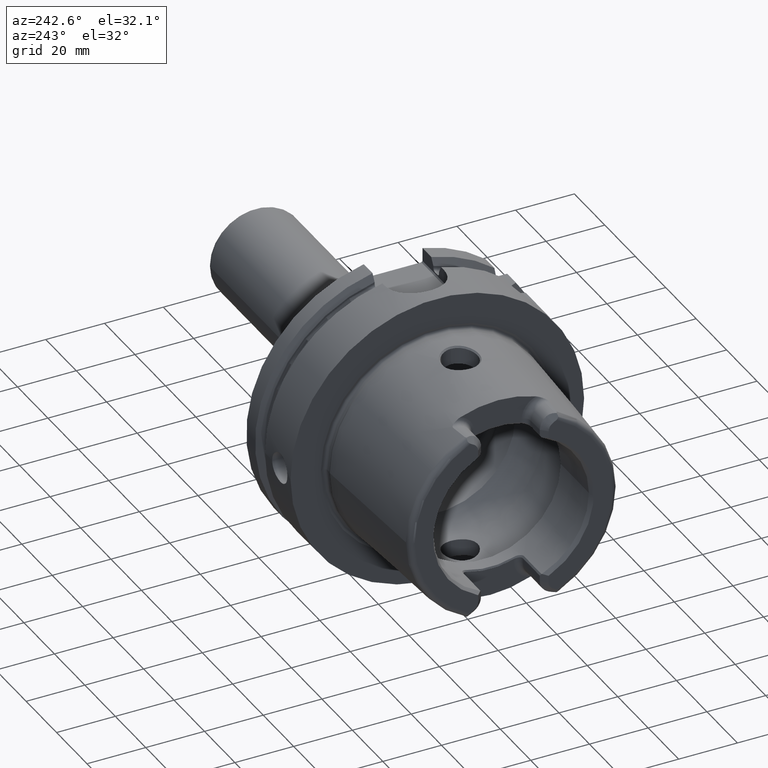
[diagram: clean part render]
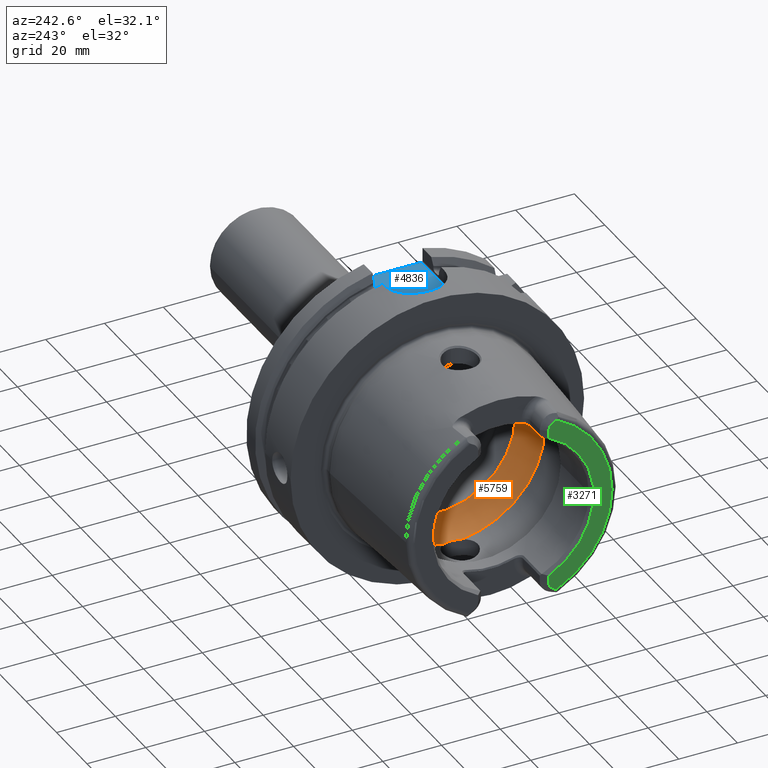
[diagram: same view with three faces highlighted in distinct colors, each labeled with its STEP entity id]
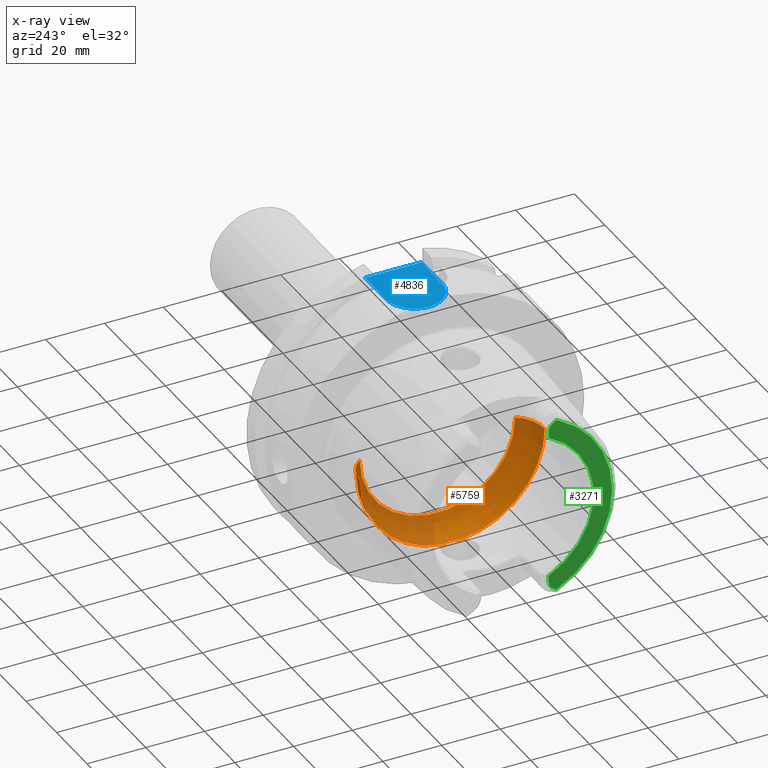
[diagram: x-ray of the same camera — body ghosted, the three highlighted faces saturated]
A machine part, auxiliary view with three faces highlighted in distinct colors.
The next image is the same camera in x-ray (body ghosted, the three faces saturated) — at least one of them is partly hidden behind the body in this view.
Their STEP definitions:

[orange] entity #5759 — the highlighted toroidal blend (fillet) surface has major radius 19.5 mm and minor (blend) radius 12 mm.
#2191=CARTESIAN_POINT('',(-9.846794344809E0,0.E0,0.E0));
#2192=DIRECTION('',(-1.E0,0.E0,0.E0));
#2193=DIRECTION('',(0.E0,-9.756145662299E-2,-9.952295022665E-1));
#2194=AXIS2_PLACEMENT_3D('',#2191,#2192,#2193);
#2204=CARTESIAN_POINT('',(-9.846794344809E0,0.E0,0.E0));
#2205=DIRECTION('',(-1.E0,0.E0,0.E0));
#2206=DIRECTION('',(0.E0,1.E0,0.E0));
#2207=AXIS2_PLACEMENT_3D('',#2204,#2205,#2206);
#2209=CARTESIAN_POINT('',(-9.846794344809E0,3.073185883624E0,
-3.134972932139E1));
#2210=CARTESIAN_POINT('',(-9.738537060689E0,2.891656984993E0,
-3.136752443672E1));
#2211=CARTESIAN_POINT('',(-9.539962893717E0,2.515101251431E0,
-3.139831839188E1));
#2212=CARTESIAN_POINT('',(-9.301049424477E0,1.913783257480E0,
-3.143197673752E1));
#2213=CARTESIAN_POINT('',(-9.127438432729E0,1.286303015996E0,
-3.145454039544E1));
#2214=CARTESIAN_POINT('',(-9.022899506342E0,6.437010581526E-1,
-3.146736051152E1));
#2215=CARTESIAN_POINT('',(-9.E0,2.141354428497E-1,-3.147008518506E1));
#2216=CARTESIAN_POINT('',(-9.E0,0.E0,-3.147008518506E1));
#2218=CARTESIAN_POINT('',(-9.846794344809E0,1.95E1,0.E0));
#2219=DIRECTION('',(0.E0,0.E0,1.E0));
#2220=DIRECTION('',(8.122328620674E-1,5.833333333333E-1,0.E0));
#2221=AXIS2_PLACEMENT_3D('',#2218,#2219,#2220);
#2223=CARTESIAN_POINT('',(-1.E-1,0.E0,0.E0));
#2224=DIRECTION('',(-1.E0,0.E0,0.E0));
#2225=DIRECTION('',(0.E0,1.E0,0.E0));
#2226=AXIS2_PLACEMENT_3D('',#2223,#2224,#2225);
#2228=CARTESIAN_POINT('',(-9.846794344809E0,-1.95E1,0.E0));
#2229=DIRECTION('',(0.E0,0.E0,-1.E0));
#2230=DIRECTION('',(8.122328620674E-1,-5.833333333333E-1,0.E0));
#2231=AXIS2_PLACEMENT_3D('',#2228,#2229,#2230);
#2233=CARTESIAN_POINT('',(-9.E0,0.E0,-3.147008518506E1));
#2234=CARTESIAN_POINT('',(-9.E0,-2.140673862591E-1,-3.147008518506E1));
#2235=CARTESIAN_POINT('',(-9.022884475739E0,-6.435227636510E-1,
-3.146736230982E1));
#2236=CARTESIAN_POINT('',(-9.127385021154E0,-1.286046048393E0,
-3.145454700706E1));
#2237=CARTESIAN_POINT('',(-9.300956096822E0,-1.913519178713E0,
-3.143198945276E1));
#2238=CARTESIAN_POINT('',(-9.539929943663E0,-2.515045104426E0,
-3.139832356097E1));
#2239=CARTESIAN_POINT('',(-9.738527185842E0,-2.891640426569E0,
-3.136752605993E1));
#2240=CARTESIAN_POINT('',(-9.846794344809E0,-3.073185883624E0,
-3.134972932139E1));
#2733=CARTESIAN_POINT('',(-1.E-1,2.65E1,0.E0));
#2734=VERTEX_POINT('',#2733);
#2735=CARTESIAN_POINT('',(-9.846794344809E0,3.15E1,0.E0));
#2736=VERTEX_POINT('',#2735);
#2745=CARTESIAN_POINT('',(-1.E-1,-2.65E1,0.E0));
#2746=VERTEX_POINT('',#2745);
#2747=CARTESIAN_POINT('',(-9.846794344809E0,-3.15E1,0.E0));
#2748=VERTEX_POINT('',#2747);
#2918=VERTEX_POINT('',#2209);
#2919=VERTEX_POINT('',#2216);
#2920=VERTEX_POINT('',#2240);
#5744=CARTESIAN_POINT('',(-9.846794344809E0,0.E0,0.E0));
#5745=DIRECTION('',(1.E0,0.E0,0.E0));
#5746=DIRECTION('',(0.E0,-1.E0,0.E0));
#5747=AXIS2_PLACEMENT_3D('',#5744,#5745,#5746);
#5748=TOROIDAL_SURFACE('',#5747,1.95E1,1.2E1);
#5749=ORIENTED_EDGE('',*,*,#5682,.F.);
#5750=ORIENTED_EDGE('',*,*,#5739,.F.);
#5751=ORIENTED_EDGE('',*,*,#5701,.F.);
#5753=ORIENTED_EDGE('',*,*,#5752,.T.);
#5754=ORIENTED_EDGE('',*,*,#5697,.T.);
#5755=ORIENTED_EDGE('',*,*,#5733,.F.);
#5756=ORIENTED_EDGE('',*,*,#5406,.F.);
#5757=EDGE_LOOP('',(#5749,#5750,#5751,#5753,#5754,#5755,#5756));
#5758=FACE_OUTER_BOUND('',#5757,.F.);
#5759=ADVANCED_FACE('',(#5758),#5748,.F.);
#2195=CIRCLE('',#2194,3.15E1);
#2208=CIRCLE('',#2207,3.15E1);
#2217=B_SPLINE_CURVE_WITH_KNOTS('',3,(#2209,#2210,#2211,#2212,#2213,#2214,#2215,
#2216),.UNSPECIFIED.,.F.,.F.,(4,1,1,1,1,4),(0.E0,2.E-1,4.E-1,6.E-1,8.E-1,1.E0),
.UNSPECIFIED.);
#2222=CIRCLE('',#2221,1.2E1);
#2227=CIRCLE('',#2226,2.65E1);
#2232=CIRCLE('',#2231,1.2E1);
#2241=B_SPLINE_CURVE_WITH_KNOTS('',3,(#2233,#2234,#2235,#2236,#2237,#2238,#2239,
#2240),.UNSPECIFIED.,.F.,.F.,(4,1,1,1,1,4),(0.E0,2.E-1,4.E-1,6.E-1,8.E-1,1.E0),
.UNSPECIFIED.);
#5406=EDGE_CURVE('',#2919,#2920,#2241,.T.);
#5682=EDGE_CURVE('',#2918,#2919,#2217,.T.);
#5697=EDGE_CURVE('',#2746,#2748,#2232,.T.);
#5701=EDGE_CURVE('',#2734,#2736,#2222,.T.);
#5733=EDGE_CURVE('',#2920,#2748,#2195,.T.);
#5739=EDGE_CURVE('',#2736,#2918,#2208,.T.);
#5752=EDGE_CURVE('',#2734,#2746,#2227,.T.);

[blue] entity #4836 — the highlighted planar face has unit normal (0, 0, 1).
#1071=DIRECTION('',(0.E0,1.E0,0.E0));
#1072=VECTOR('',#1071,1.92E1);
#1073=CARTESIAN_POINT('',(2.9E1,-9.6E0,4.4E1));
#1074=LINE('',#1073,#1072);
#1735=DIRECTION('',(1.E0,1.002425647401E-8,-1.002288588783E-8));
#1736=VECTOR('',#1735,1.399999999791E1);
#1737=CARTESIAN_POINT('',(1.500000000209E1,9.599999859660E0,4.400000014032E1));
#1738=LINE('',#1737,#1736);
#1739=DIRECTION('',(-1.E0,1.002479026950E-8,1.002234942832E-8));
#1740=VECTOR('',#1739,1.399999999755E1);
#1741=CARTESIAN_POINT('',(2.9E1,-9.6E0,4.4E1));
#1742=LINE('',#1741,#1740);
#1743=CARTESIAN_POINT('',(1.5E1,-5.506706202141E-14,4.400000003787E1));
#1744=DIRECTION('',(0.E0,0.E0,-1.E0));
#1745=DIRECTION('',(0.E0,-1.E0,0.E0));
#1746=AXIS2_PLACEMENT_3D('',#1743,#1744,#1745);
#2946=CARTESIAN_POINT('',(2.9E1,-9.6E0,4.4E1));
#2948=VERTEX_POINT('',#2946);
#2951=CARTESIAN_POINT('',(2.9E1,9.6E0,4.4E1));
#2953=VERTEX_POINT('',#2951);
#3030=CARTESIAN_POINT('',(1.500000000209E1,9.599999859660E0,4.400000014032E1));
#3031=VERTEX_POINT('',#3030);
#3032=CARTESIAN_POINT('',(1.5E1,-9.599999195885E0,4.400000003787E1));
#3033=VERTEX_POINT('',#3032);
#4823=CARTESIAN_POINT('',(0.E0,0.E0,4.4E1));
#4824=DIRECTION('',(0.E0,0.E0,1.E0));
#4825=DIRECTION('',(1.E0,0.E0,0.E0));
#4826=AXIS2_PLACEMENT_3D('',#4823,#4824,#4825);
#4827=PLANE('',#4826);
#4829=ORIENTED_EDGE('',*,*,#4828,.T.);
#4830=ORIENTED_EDGE('',*,*,#4228,.F.);
#4832=ORIENTED_EDGE('',*,*,#4831,.T.);
#4833=ORIENTED_EDGE('',*,*,#4813,.T.);
#4834=EDGE_LOOP('',(#4829,#4830,#4832,#4833));
#4835=FACE_OUTER_BOUND('',#4834,.F.);
#4836=ADVANCED_FACE('',(#4835),#4827,.T.);
#1747=CIRCLE('',#1746,9.599999195885E0);
#4228=EDGE_CURVE('',#2948,#2953,#1074,.T.);
#4813=EDGE_CURVE('',#3033,#3031,#1747,.T.);
#4828=EDGE_CURVE('',#3031,#2953,#1738,.T.);
#4831=EDGE_CURVE('',#2948,#3033,#1742,.T.);

[green] entity #3271 — the highlighted planar face has unit normal (1, 0, 0).
#126=DIRECTION('',(0.E0,0.E0,-1.E0));
#127=VECTOR('',#126,2.370180025047E0);
#128=CARTESIAN_POINT('',(-5.E1,-1.201E1,-2.458981997495E1));
#129=LINE('',#128,#127);
#130=DIRECTION('',(0.E0,0.E0,1.E0));
#131=VECTOR('',#130,2.370180025047E0);
#132=CARTESIAN_POINT('',(-5.E1,-1.201E1,2.458981997495E1));
#133=LINE('',#132,#131);
#134=CARTESIAN_POINT('',(-5.E1,-1.501E1,2.696E1));
#135=DIRECTION('',(1.E0,0.E0,0.E0));
#136=DIRECTION('',(0.E0,1.E0,-1.657933050107E-14));
#137=AXIS2_PLACEMENT_3D('',#134,#135,#136);
#139=DIRECTION('',(0.E0,8.533905854017E-1,-5.212720103245E-1));
#140=VECTOR('',#139,1.392150953463E0);
#141=CARTESIAN_POINT('',(-5.E1,-1.463423248617E1,3.024586108239E1));
#142=LINE('',#141,#140);
#143=DIRECTION('',(0.E0,8.533905854017E-1,5.212720103245E-1));
#144=VECTOR('',#143,1.392150953463E0);
#145=CARTESIAN_POINT('',(-5.E1,-1.463423248617E1,-3.024586108239E1));
#146=LINE('',#145,#144);
#147=CARTESIAN_POINT('',(-5.E1,-1.501E1,-2.696E1));
#148=DIRECTION('',(-1.E0,0.E0,0.E0));
#149=DIRECTION('',(0.E0,1.E0,0.E0));
#150=AXIS2_PLACEMENT_3D('',#147,#148,#149);
#197=CARTESIAN_POINT('',(-5.E1,0.E0,0.E0));
#198=DIRECTION('',(1.E0,0.E0,0.E0));
#199=DIRECTION('',(0.E0,-4.388653384185E-1,8.985528447091E-1));
#200=AXIS2_PLACEMENT_3D('',#197,#198,#199);
#359=CARTESIAN_POINT('',(-5.E1,0.E0,0.E0));
#360=DIRECTION('',(-1.E0,0.E0,0.E0));
#361=DIRECTION('',(0.E0,-4.355401503799E-1,-9.001693048572E-1));
#362=AXIS2_PLACEMENT_3D('',#359,#360,#361);
#2800=CARTESIAN_POINT('',(-5.E1,-1.201E1,2.458981997495E1));
#2801=CARTESIAN_POINT('',(-5.E1,-1.201E1,2.696E1));
#2802=VERTEX_POINT('',#2800);
#2803=VERTEX_POINT('',#2801);
#2804=CARTESIAN_POINT('',(-5.E1,-1.344618396903E1,2.952017175621E1));
#2805=VERTEX_POINT('',#2804);
#2806=CARTESIAN_POINT('',(-5.E1,-1.463423248617E1,3.024586108239E1));
#2807=VERTEX_POINT('',#2806);
#2893=CARTESIAN_POINT('',(-5.E1,-1.201E1,-2.458981997495E1));
#2894=CARTESIAN_POINT('',(-5.E1,-1.201E1,-2.696E1));
#2895=VERTEX_POINT('',#2893);
#2896=VERTEX_POINT('',#2894);
#2897=CARTESIAN_POINT('',(-5.E1,-1.344618396903E1,-2.952017175621E1));
#2898=VERTEX_POINT('',#2897);
#2899=CARTESIAN_POINT('',(-5.E1,-1.463423248617E1,-3.024586108239E1));
#2900=VERTEX_POINT('',#2899);
#3249=CARTESIAN_POINT('',(-5.E1,0.E0,0.E0));
#3250=DIRECTION('',(1.E0,0.E0,0.E0));
#3251=DIRECTION('',(0.E0,-1.E0,0.E0));
#3252=AXIS2_PLACEMENT_3D('',#3249,#3250,#3251);
#3253=PLANE('',#3252);
#3255=ORIENTED_EDGE('',*,*,#3254,.F.);
#3257=ORIENTED_EDGE('',*,*,#3256,.F.);
#3259=ORIENTED_EDGE('',*,*,#3258,.T.);
#3261=ORIENTED_EDGE('',*,*,#3260,.T.);
#3262=ORIENTED_EDGE('',*,*,#3213,.F.);
#3264=ORIENTED_EDGE('',*,*,#3263,.F.);
#3266=ORIENTED_EDGE('',*,*,#3265,.T.);
#3268=ORIENTED_EDGE('',*,*,#3267,.F.);
#3269=EDGE_LOOP('',(#3255,#3257,#3259,#3261,#3262,#3264,#3266,#3268));
#3270=FACE_OUTER_BOUND('',#3269,.F.);
#3271=ADVANCED_FACE('',(#3270),#3253,.F.);
#138=CIRCLE('',#137,3.E0);
#151=CIRCLE('',#150,3.E0);
#201=CIRCLE('',#200,2.736602540378E1);
#363=CIRCLE('',#362,3.360019156306E1);
#3213=EDGE_CURVE('',#2807,#2805,#142,.T.);
#3254=EDGE_CURVE('',#2895,#2896,#129,.T.);
#3256=EDGE_CURVE('',#2802,#2895,#201,.T.);
#3258=EDGE_CURVE('',#2802,#2803,#133,.T.);
#3260=EDGE_CURVE('',#2803,#2805,#138,.T.);
#3263=EDGE_CURVE('',#2900,#2807,#363,.T.);
#3265=EDGE_CURVE('',#2900,#2898,#146,.T.);
#3267=EDGE_CURVE('',#2896,#2898,#151,.T.);